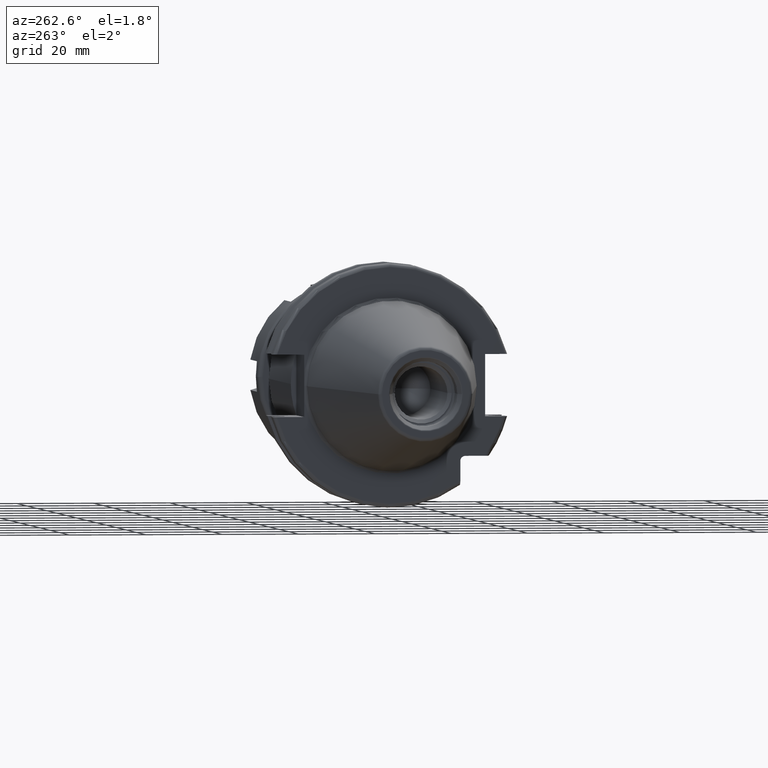
[diagram: clean part render]
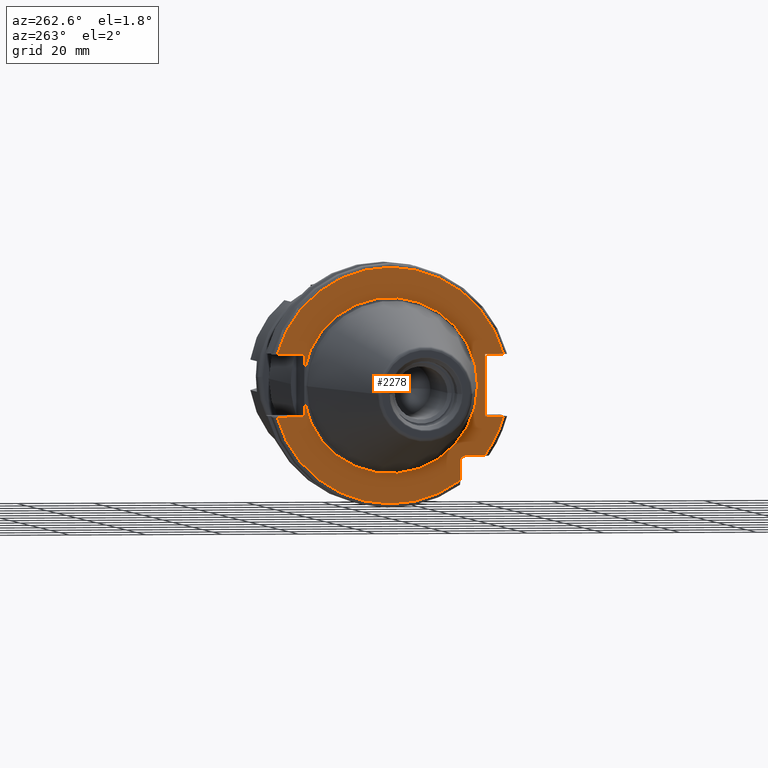
[diagram: same view with one face highlighted and labeled with its STEP entity id]
A machine part, auxiliary view. The second image highlights one B-rep face of the part: STEP entity #2278.
In plain terms, the highlighted planar face has unit normal (1, 0, 0).
Its self-contained STEP definition (entity closure, byte-faithful):
#117=CARTESIAN_POINT('',(3.2E0,0.E0,0.E0));
#118=DIRECTION('',(-1.E0,0.E0,0.E0));
#119=DIRECTION('',(0.E0,9.857923497268E-1,-1.679685780739E-1));
#120=AXIS2_PLACEMENT_3D('',#117,#118,#119);
#511=DIRECTION('',(0.E0,-1.E0,0.E0));
#512=VECTOR('',#511,4.990259339464E0);
#513=CARTESIAN_POINT('',(3.2E0,-1.97E1,-1.835E1));
#514=LINE('',#513,#512);
#515=DIRECTION('',(0.E0,0.E0,1.E0));
#516=VECTOR('',#515,4.990259339464E0);
#517=CARTESIAN_POINT('',(3.2E0,-1.835E1,-2.469025933946E1));
#518=LINE('',#517,#516);
#519=CARTESIAN_POINT('',(3.2E0,0.E0,0.E0));
#520=DIRECTION('',(-1.E0,0.E0,0.E0));
#521=DIRECTION('',(0.E0,9.647119303464E-1,-2.633075985372E-1));
#522=AXIS2_PLACEMENT_3D('',#519,#520,#521);
#524=DIRECTION('',(0.E0,-1.E0,0.E0));
#525=VECTOR('',#524,7.126950757280E0);
#526=CARTESIAN_POINT('',(3.2E0,2.967695075728E1,-8.1E0));
#527=LINE('',#526,#525);
#528=DIRECTION('',(0.E0,0.E0,-1.E0));
#529=VECTOR('',#528,4.257718776560E0);
#530=CARTESIAN_POINT('',(3.2E0,2.255E1,-3.842281223440E0));
#531=LINE('',#530,#529);
#532=DIRECTION('',(0.E0,0.E0,-1.E0));
#533=VECTOR('',#532,4.257718776560E0);
#534=CARTESIAN_POINT('',(3.2E0,2.255E1,8.1E0));
#535=LINE('',#534,#533);
#536=DIRECTION('',(0.E0,-1.E0,0.E0));
#537=VECTOR('',#536,7.126950757280E0);
#538=CARTESIAN_POINT('',(3.2E0,2.967695075728E1,8.1E0));
#539=LINE('',#538,#537);
#540=CARTESIAN_POINT('',(3.2E0,0.E0,0.E0));
#541=DIRECTION('',(1.E0,0.E0,0.E0));
#542=DIRECTION('',(0.E0,9.647119303464E-1,2.633075985372E-1));
#543=AXIS2_PLACEMENT_3D('',#540,#541,#542);
#545=DIRECTION('',(0.E0,1.E0,0.E0));
#546=VECTOR('',#545,4.826950757280E0);
#547=CARTESIAN_POINT('',(3.2E0,-2.967695075728E1,8.1E0));
#548=LINE('',#547,#546);
#549=DIRECTION('',(0.E0,0.E0,1.E0));
#550=VECTOR('',#549,1.62E1);
#551=CARTESIAN_POINT('',(3.2E0,-2.485E1,-8.1E0));
#552=LINE('',#551,#550);
#553=DIRECTION('',(0.E0,1.E0,0.E0));
#554=VECTOR('',#553,4.826950757280E0);
#555=CARTESIAN_POINT('',(3.2E0,-2.967695075728E1,-8.1E0));
#556=LINE('',#555,#554);
#557=CARTESIAN_POINT('',(3.2E0,0.E0,0.E0));
#558=DIRECTION('',(-1.E0,0.E0,0.E0));
#559=DIRECTION('',(0.E0,-8.026089992512E-1,-5.965054855750E-1));
#560=AXIS2_PLACEMENT_3D('',#557,#558,#559);
#571=CARTESIAN_POINT('',(3.2E0,-1.97E1,-1.97E1));
#572=DIRECTION('',(1.E0,0.E0,0.E0));
#573=DIRECTION('',(0.E0,1.E0,0.E0));
#574=AXIS2_PLACEMENT_3D('',#571,#572,#573);
#961=CARTESIAN_POINT('',(3.2E0,0.E0,0.E0));
#962=DIRECTION('',(1.E0,0.E0,0.E0));
#963=DIRECTION('',(0.E0,9.857923497268E-1,1.679685780739E-1));
#964=AXIS2_PLACEMENT_3D('',#961,#962,#963);
#1323=CARTESIAN_POINT('',(3.2E0,-2.2875E1,0.E0));
#1325=VERTEX_POINT('',#1323);
#1465=CARTESIAN_POINT('',(3.2E0,2.967695075728E1,8.1E0));
#1466=CARTESIAN_POINT('',(3.2E0,2.255E1,8.1E0));
#1467=VERTEX_POINT('',#1465);
#1468=VERTEX_POINT('',#1466);
#1469=CARTESIAN_POINT('',(3.2E0,2.255E1,3.842281223440E0));
#1470=VERTEX_POINT('',#1469);
#1471=CARTESIAN_POINT('',(3.2E0,2.255E1,-3.842281223440E0));
#1472=CARTESIAN_POINT('',(3.2E0,2.255E1,-8.1E0));
#1473=VERTEX_POINT('',#1471);
#1474=VERTEX_POINT('',#1472);
#1475=CARTESIAN_POINT('',(3.2E0,2.967695075728E1,-8.1E0));
#1476=VERTEX_POINT('',#1475);
#1477=CARTESIAN_POINT('',(3.2E0,-2.967695075728E1,-8.1E0));
#1478=CARTESIAN_POINT('',(3.2E0,-2.485E1,-8.1E0));
#1479=VERTEX_POINT('',#1477);
#1480=VERTEX_POINT('',#1478);
#1481=CARTESIAN_POINT('',(3.2E0,-2.485E1,8.1E0));
#1482=VERTEX_POINT('',#1481);
#1483=CARTESIAN_POINT('',(3.2E0,-2.967695075728E1,8.1E0));
#1484=VERTEX_POINT('',#1483);
#1510=CARTESIAN_POINT('',(3.2E0,-1.835E1,-2.469025933946E1));
#1511=VERTEX_POINT('',#1510);
#1518=CARTESIAN_POINT('',(3.2E0,-1.97E1,-1.835E1));
#1519=CARTESIAN_POINT('',(3.2E0,-2.469025933946E1,-1.835E1));
#1520=VERTEX_POINT('',#1518);
#1521=VERTEX_POINT('',#1519);
#1522=CARTESIAN_POINT('',(3.2E0,-1.835E1,-1.97E1));
#1523=VERTEX_POINT('',#1522);
#2249=CARTESIAN_POINT('',(3.2E0,0.E0,0.E0));
#2250=DIRECTION('',(1.E0,0.E0,0.E0));
#2251=DIRECTION('',(0.E0,-1.E0,0.E0));
#2252=AXIS2_PLACEMENT_3D('',#2249,#2250,#2251);
#2253=PLANE('',#2252);
#2255=ORIENTED_EDGE('',*,*,#2254,.F.);
#2257=ORIENTED_EDGE('',*,*,#2256,.F.);
#2259=ORIENTED_EDGE('',*,*,#2258,.F.);
#2261=ORIENTED_EDGE('',*,*,#2260,.F.);
#2262=ORIENTED_EDGE('',*,*,#1889,.T.);
#2263=ORIENTED_EDGE('',*,*,#1750,.F.);
#2264=ORIENTED_EDGE('',*,*,#1731,.T.);
#2266=ORIENTED_EDGE('',*,*,#2265,.F.);
#2267=ORIENTED_EDGE('',*,*,#1745,.F.);
#2268=ORIENTED_EDGE('',*,*,#1808,.F.);
#2270=ORIENTED_EDGE('',*,*,#2269,.T.);
#2271=ORIENTED_EDGE('',*,*,#2228,.T.);
#2272=ORIENTED_EDGE('',*,*,#1984,.F.);
#2273=ORIENTED_EDGE('',*,*,#2004,.F.);
#2275=ORIENTED_EDGE('',*,*,#2274,.F.);
#2276=EDGE_LOOP('',(#2255,#2257,#2259,#2261,#2262,#2263,#2264,#2266,#2267,#2268,
#2270,#2271,#2272,#2273,#2275));
#2277=FACE_OUTER_BOUND('',#2276,.F.);
#2278=ADVANCED_FACE('',(#2277),#2253,.F.);
#121=CIRCLE('',#120,2.2875E1);
#523=CIRCLE('',#522,3.07625E1);
#544=CIRCLE('',#543,3.07625E1);
#561=CIRCLE('',#560,3.07625E1);
#575=CIRCLE('',#574,1.35E0);
#965=CIRCLE('',#964,2.2875E1);
#1731=EDGE_CURVE('',#1473,#1325,#121,.T.);
#1745=EDGE_CURVE('',#1468,#1470,#535,.T.);
#1750=EDGE_CURVE('',#1473,#1474,#531,.T.);
#1808=EDGE_CURVE('',#1467,#1468,#539,.T.);
#1889=EDGE_CURVE('',#1476,#1474,#527,.T.);
#1984=EDGE_CURVE('',#1480,#1482,#552,.T.);
#2004=EDGE_CURVE('',#1479,#1480,#556,.T.);
#2228=EDGE_CURVE('',#1484,#1482,#548,.T.);
#2254=EDGE_CURVE('',#1520,#1521,#514,.T.);
#2256=EDGE_CURVE('',#1523,#1520,#575,.T.);
#2258=EDGE_CURVE('',#1511,#1523,#518,.T.);
#2260=EDGE_CURVE('',#1476,#1511,#523,.T.);
#2265=EDGE_CURVE('',#1470,#1325,#965,.T.);
#2269=EDGE_CURVE('',#1467,#1484,#544,.T.);
#2274=EDGE_CURVE('',#1521,#1479,#561,.T.);